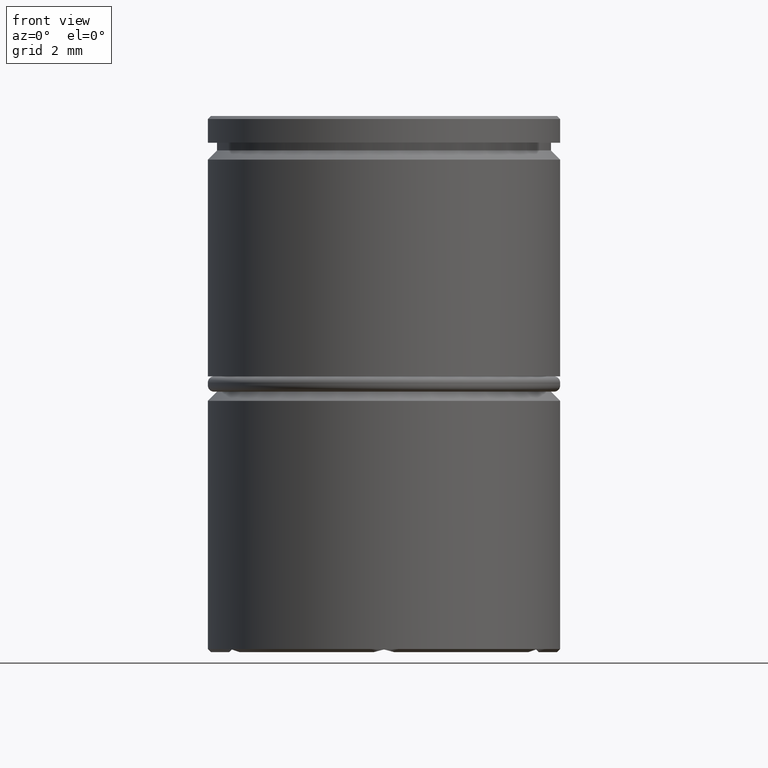
[diagram: clean part render]
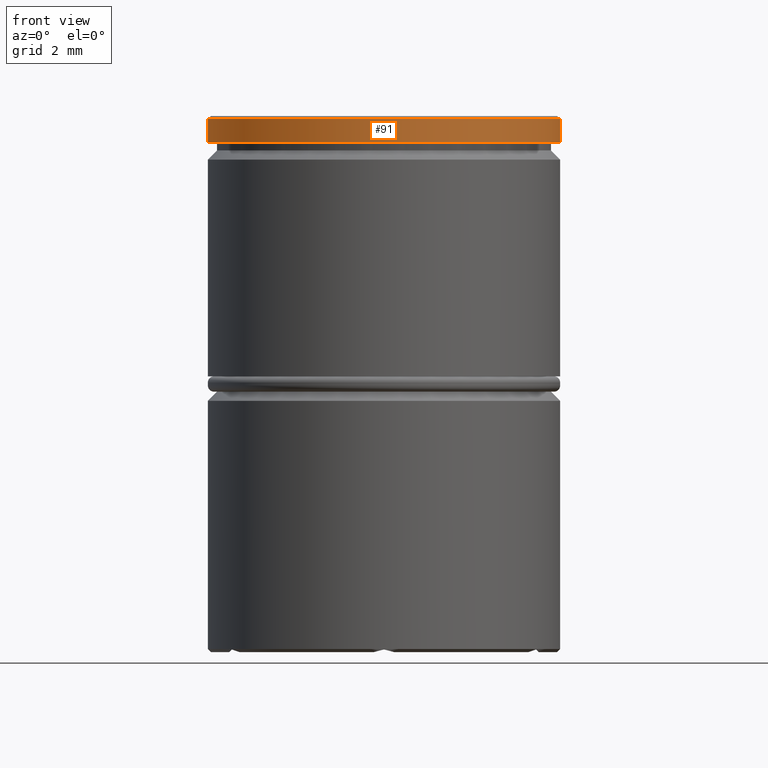
[diagram: same view with one face highlighted and labeled with its STEP entity id]
A machine part, front view. The second image highlights one B-rep face of the part: STEP entity #91.
In plain terms, the highlighted cylindrical surface (partial cylindrical patch) has radius 5.75 mm, axis along (-0, -0, 1).
Its self-contained STEP definition (entity closure, byte-faithful):
#52 = ORIENTED_EDGE ( 'NONE', *, *, #1033, .T. ) ;
#91 = ADVANCED_FACE ( 'NONE', ( #960 ), #469, .T. ) ;
#103 = DIRECTION ( 'NONE',  ( -0.000000000000000000, -0.000000000000000000, 1.000000000000000000 ) ) ;
#202 = EDGE_CURVE ( 'NONE', #1081, #445, #1321, .T. ) ;
#222 = ORIENTED_EDGE ( 'NONE', *, *, #202, .F. ) ;
#309 = DIRECTION ( 'NONE',  ( -0.000000000000000000, -0.000000000000000000, 1.000000000000000000 ) ) ;
#325 = DIRECTION ( 'NONE',  ( 0.000000000000000000, 0.000000000000000000, -1.000000000000000000 ) ) ;
#394 = VECTOR ( 'NONE', #465, 1000.000000000000000 ) ;
#426 = AXIS2_PLACEMENT_3D ( 'NONE', #1109, #325, #1060 ) ;
#445 = VERTEX_POINT ( 'NONE', #1050 ) ;
#461 = CARTESIAN_POINT ( 'NONE',  ( 5.750000000000000000, 0.000000000000000000, -0.8749999999999998890 ) ) ;
#465 = DIRECTION ( 'NONE',  ( -0.000000000000000000, -0.000000000000000000, 1.000000000000000000 ) ) ;
#469 = CYLINDRICAL_SURFACE ( 'NONE', #1139, 5.750000000000000000 ) ;
#544 = DIRECTION ( 'NONE',  ( -0.000000000000000000, -0.000000000000000000, 1.000000000000000000 ) ) ;
#545 = DIRECTION ( 'NONE',  ( 1.000000000000000000, 0.000000000000000000, 0.000000000000000000 ) ) ;
#546 = DIRECTION ( 'NONE',  ( 1.000000000000000000, 0.000000000000000000, 0.000000000000000000 ) ) ;
#627 = CARTESIAN_POINT ( 'NONE',  ( 0.000000000000000000, 0.000000000000000000, -0.8749999999999998890 ) ) ;
#661 = EDGE_CURVE ( 'NONE', #1195, #445, #1372, .T. ) ;
#756 = VERTEX_POINT ( 'NONE', #461 ) ;
#798 = ORIENTED_EDGE ( 'NONE', *, *, #661, .T. ) ;
#825 = CARTESIAN_POINT ( 'NONE',  ( 5.750000000000000000, 0.000000000000000000, -0.09999999999999506506 ) ) ;
#836 = AXIS2_PLACEMENT_3D ( 'NONE', #627, #103, #546 ) ;
#960 = FACE_OUTER_BOUND ( 'NONE', #984, .T. ) ;
#966 = LINE ( 'NONE', #986, #394 ) ;
#984 = EDGE_LOOP ( 'NONE', ( #222, #1230, #52, #798 ) ) ;
#986 = CARTESIAN_POINT ( 'NONE',  ( 5.750000000000000000, 0.000000000000000000, 0.000000000000000000 ) ) ;
#1007 = CIRCLE ( 'NONE', #836, 5.750000000000000000 ) ;
#1033 = EDGE_CURVE ( 'NONE', #756, #1195, #966, .T. ) ;
#1050 = CARTESIAN_POINT ( 'NONE',  ( -5.750000000000000000, 7.041719095097280880E-16, -0.09999999999999506506 ) ) ;
#1060 = DIRECTION ( 'NONE',  ( 1.000000000000000000, 0.000000000000000000, 0.000000000000000000 ) ) ;
#1081 = VERTEX_POINT ( 'NONE', #1377 ) ;
#1086 = CARTESIAN_POINT ( 'NONE',  ( -5.750000000000000000, 7.041719095097280880E-16, 0.000000000000000000 ) ) ;
#1109 = CARTESIAN_POINT ( 'NONE',  ( 0.000000000000000000, 0.000000000000000000, -0.09999999999999506506 ) ) ;
#1139 = AXIS2_PLACEMENT_3D ( 'NONE', #1263, #309, #545 ) ;
#1195 = VERTEX_POINT ( 'NONE', #825 ) ;
#1205 = VECTOR ( 'NONE', #544, 1000.000000000000000 ) ;
#1230 = ORIENTED_EDGE ( 'NONE', *, *, #1339, .T. ) ;
#1263 = CARTESIAN_POINT ( 'NONE',  ( 0.000000000000000000, 0.000000000000000000, 0.000000000000000000 ) ) ;
#1321 = LINE ( 'NONE', #1086, #1205 ) ;
#1339 = EDGE_CURVE ( 'NONE', #1081, #756, #1007, .T. ) ;
#1372 = CIRCLE ( 'NONE', #426, 5.750000000000000000 ) ;
#1377 = CARTESIAN_POINT ( 'NONE',  ( -5.750000000000000000, 7.041719095097280880E-16, -0.8749999999999998890 ) ) ;